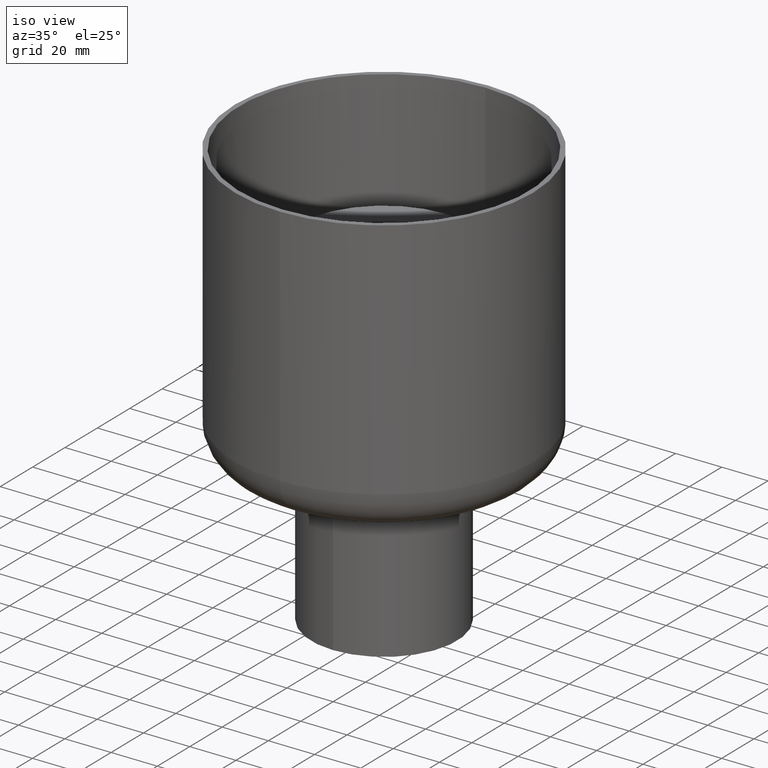
[diagram: clean part render]
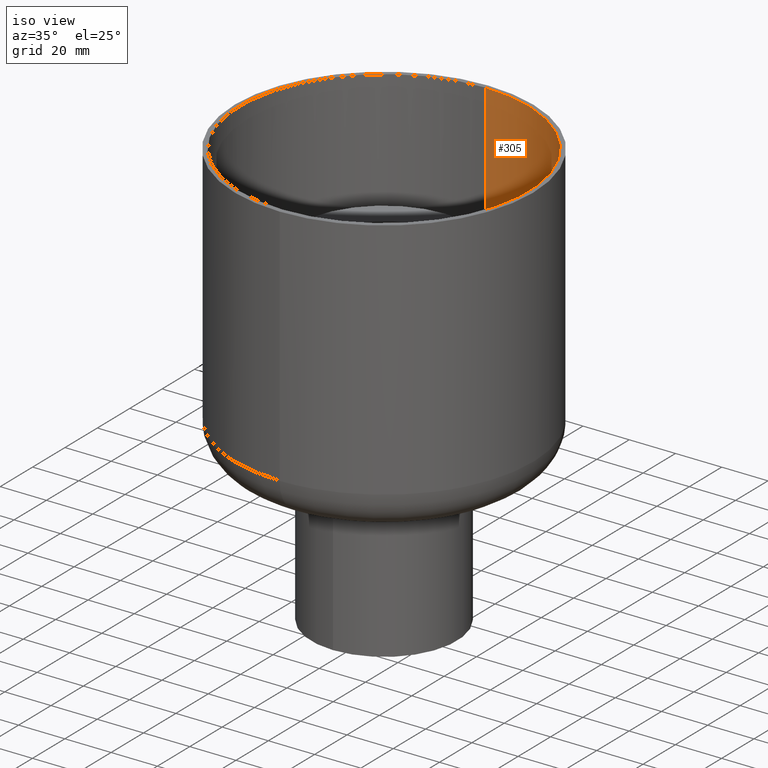
[diagram: same view with one face highlighted and labeled with its STEP entity id]
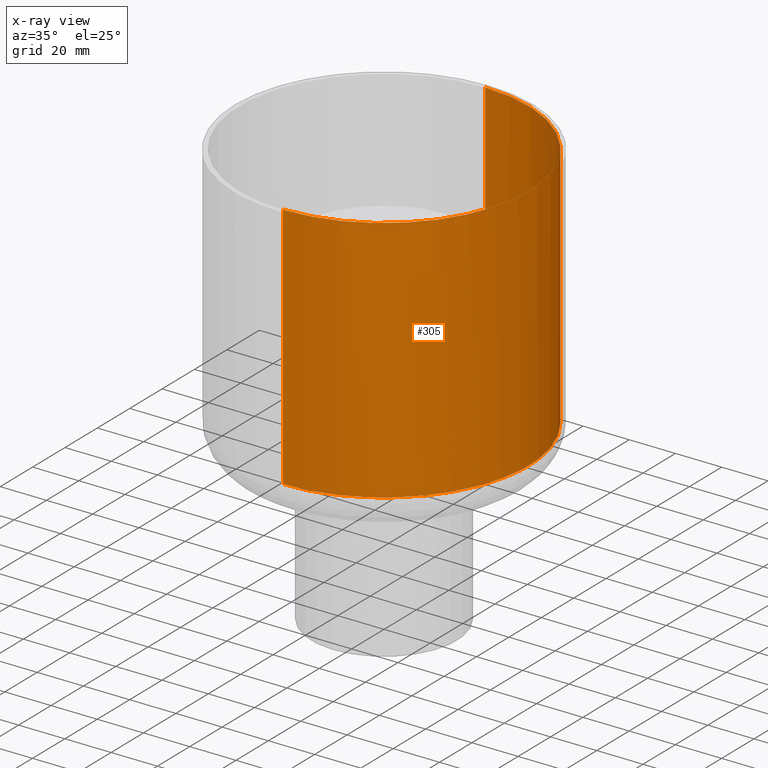
[diagram: x-ray of the same camera — body ghosted, the highlighted face saturated]
A machine part, iso view. The second image highlights one B-rep face of the part: STEP entity #305.
The next image is the same camera in x-ray: the body ghosted, the highlighted face saturated — about 0% of this face is hidden behind the body in this view.
In plain terms, the highlighted cylindrical surface (partial cylindrical patch) has radius 62.5 mm, axis along (0, -0, -1).
Its self-contained STEP definition (entity closure, byte-faithful):
#39=FACE_OUTER_BOUND('',#63,.T.);
#63=EDGE_LOOP('',(#223,#224,#225,#226));
#87=CIRCLE('',#352,62.5000000000002);
#105=LINE('',#526,#119);
#106=LINE('',#538,#120);
#119=VECTOR('',#411,304.8);
#120=VECTOR('',#412,304.8);
#131=B_SPLINE_CURVE_WITH_KNOTS('',3,(#528,#529,#530,#531,#532,#533,#534,
#535,#536,#537),.UNSPECIFIED.,.F.,.F.,(4,1,1,1,1,1,1,4),(0.,0.142857142857143,
0.285714285714286,0.428571428571429,0.571428571428571,0.714285714285714,
0.857142857142857,1.),.UNSPECIFIED.);
#145=VERTEX_POINT('',#517);
#146=VERTEX_POINT('',#519);
#147=VERTEX_POINT('',#525);
#148=VERTEX_POINT('',#527);
#172=EDGE_CURVE('',#146,#145,#87,.T.);
#175=EDGE_CURVE('',#147,#145,#105,.T.);
#176=EDGE_CURVE('',#148,#147,#131,.T.);
#177=EDGE_CURVE('',#146,#148,#106,.T.);
#223=ORIENTED_EDGE('',*,*,#172,.T.);
#224=ORIENTED_EDGE('',*,*,#175,.F.);
#225=ORIENTED_EDGE('',*,*,#176,.F.);
#226=ORIENTED_EDGE('',*,*,#177,.F.);
#293=CYLINDRICAL_SURFACE('',#355,62.5000000000002);
#305=ADVANCED_FACE('',(#39),#293,.F.);
#352=AXIS2_PLACEMENT_3D('',#520,#402,#403);
#355=AXIS2_PLACEMENT_3D('',#524,#409,#410);
#402=DIRECTION('center_axis',(0.,1.63087261263545E-15,1.));
#403=DIRECTION('ref_axis',(1.61554457443259E-15,-1.,1.62430069394758E-15));
#409=DIRECTION('center_axis',(0.,-1.63087261263545E-15,-1.));
#410=DIRECTION('ref_axis',(1.61554457443259E-15,-1.,1.62430069394758E-15));
#411=DIRECTION('',(0.,1.57728115753224E-15,1.));
#412=DIRECTION('',(0.,-1.57728115753224E-15,-1.));
#517=CARTESIAN_POINT('',(-2.03037586743449E-13,62.5000000000004,-1.86528532766153E-13));
#519=CARTESIAN_POINT('',(0.,-62.4999999999999,1.73305438132791E-14));
#520=CARTESIAN_POINT('Origin',(-1.00971535902037E-13,2.31583910994234E-13,
-8.5265128291212E-14));
#524=CARTESIAN_POINT('Origin',(-1.00971535902037E-13,0.,-142.));
#525=CARTESIAN_POINT('',(-2.01943071804074E-13,62.5000000000002,-107.271926850122));
#526=CARTESIAN_POINT('',(-2.01943071804074E-13,62.5000000000002,-107.271926850122));
#527=CARTESIAN_POINT('',(0.,-62.5000000000001,-107.271926850122));
#528=CARTESIAN_POINT('Ctrl Pts',(2.37352689914374E-13,-62.5000000000001,
-107.271926850122));
#529=CARTESIAN_POINT('Ctrl Pts',(9.41376172392396,-62.6365253742047,-107.271926850122));
#530=CARTESIAN_POINT('Ctrl Pts',(28.0129003174215,-58.1693868891731,-107.271926850122));
#531=CARTESIAN_POINT('Ctrl Pts',(50.5406084722248,-40.3156832899942,-107.271926850122));
#532=CARTESIAN_POINT('Ctrl Pts',(63.0114717191921,-14.3765556478743,-107.271926850122));
#533=CARTESIAN_POINT('Ctrl Pts',(63.011471719192,14.3765556478748,-107.271926850122));
#534=CARTESIAN_POINT('Ctrl Pts',(50.5406084722245,40.3156832899947,-107.271926850122));
#535=CARTESIAN_POINT('Ctrl Pts',(28.012900317421,58.1693868891734,-107.271926850122));
#536=CARTESIAN_POINT('Ctrl Pts',(9.4137617239235,62.6365253742049,-107.271926850122));
#537=CARTESIAN_POINT('Ctrl Pts',(-1.98344986268584E-13,62.5000000000002,
-107.271926850122));
#538=CARTESIAN_POINT('',(0.,-62.4999999999999,1.69197988952874E-14));